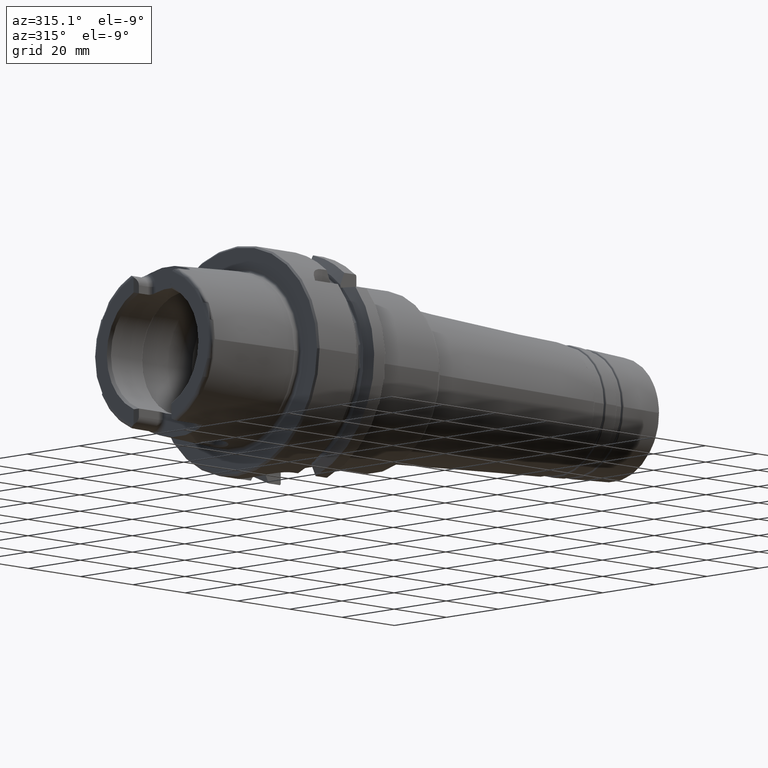
[diagram: clean part render]
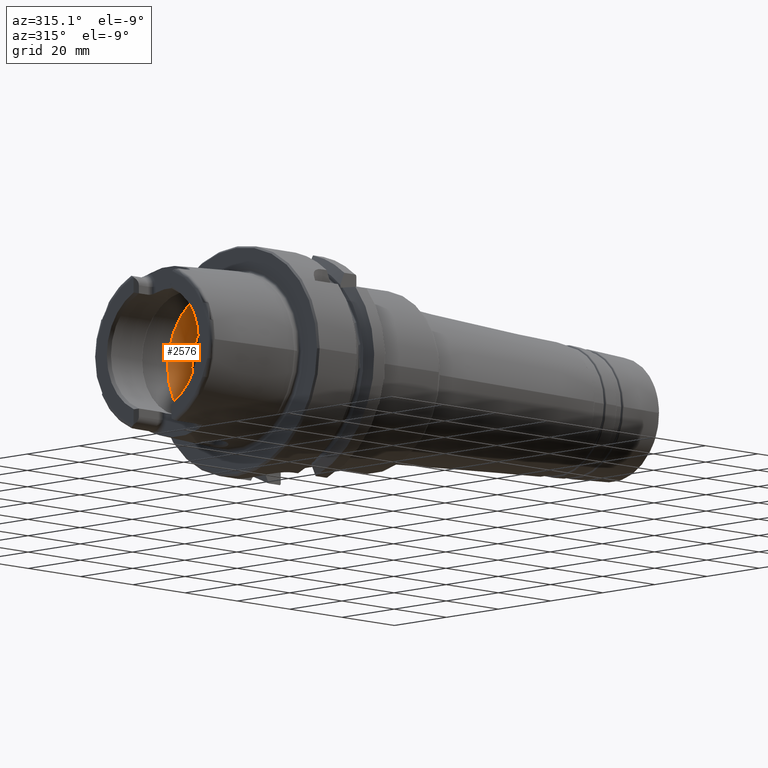
[diagram: same view with one face highlighted and labeled with its STEP entity id]
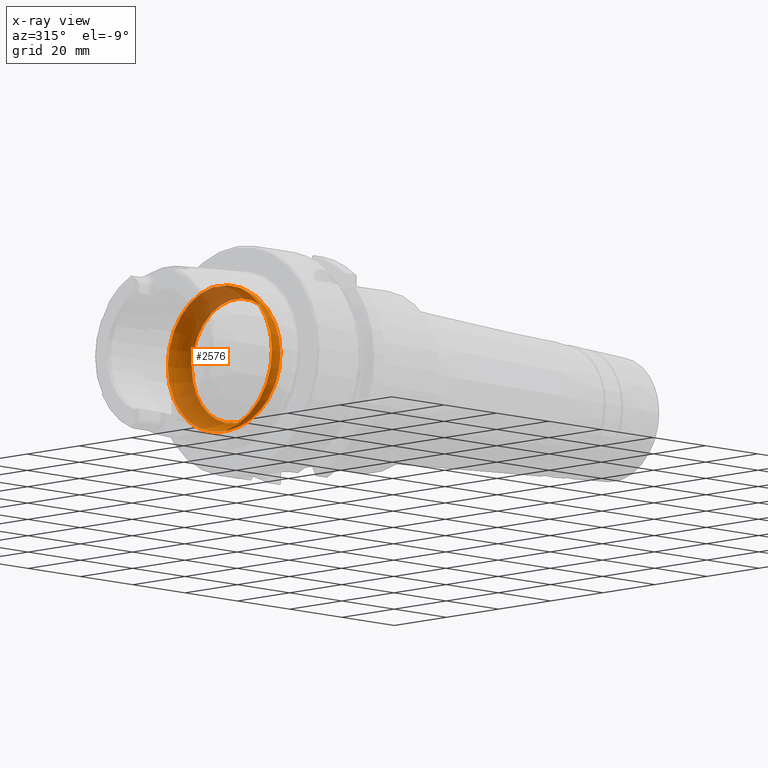
[diagram: x-ray of the same camera — body ghosted, the highlighted face saturated]
A machine part, auxiliary view. The second image highlights one B-rep face of the part: STEP entity #2576.
The next image is the same camera in x-ray: the body ghosted, the highlighted face saturated — about 39% of this face is hidden behind the body in this view.
In plain terms, the highlighted toroidal blend (fillet) surface has major radius 12 mm and minor (blend) radius 8 mm.
Its self-contained STEP definition (entity closure, byte-faithful):
#48=B_SPLINE_CURVE_WITH_KNOTS('',3,(#4588,#4589,#4590,#4591,#4592,#4593,
#4594,#4595,#4596,#4597,#4598,#4599),.UNSPECIFIED.,.F.,.F.,(4,2,2,2,2,4),
(-0.576707489927124,-0.455716402860971,-0.365368737325141,-0.320549741072208,
-0.288976283252817,-0.288398128098771),.UNSPECIFIED.);
#50=B_SPLINE_CURVE_WITH_KNOTS('',3,(#4632,#4633,#4634,#4635,#4636,#4637,
#4638,#4639,#4640,#4641),.UNSPECIFIED.,.F.,.F.,(4,2,2,2,4),(-0.288398128098771,
-0.257600392372179,-0.213718373510583,-0.137948403428913,0.),
 .UNSPECIFIED.);
#53=B_SPLINE_CURVE_WITH_KNOTS('',3,(#4754,#4755,#4756,#4757,#4758,#4759,
#4760,#4761,#4762,#4763,#4764,#4765),.UNSPECIFIED.,.F.,.F.,(4,2,2,2,2,4),
(-0.576707489927132,-0.455716402860962,-0.365368737325128,-0.320549741072191,
-0.288976283252795,-0.288398128098748),.UNSPECIFIED.);
#55=B_SPLINE_CURVE_WITH_KNOTS('',3,(#4798,#4799,#4800,#4801,#4802,#4803,
#4804,#4805,#4806,#4807),.UNSPECIFIED.,.F.,.F.,(4,2,2,2,4),(-0.288398128098748,
-0.257600392372146,-0.213718373510557,-0.137948403428907,0.),
 .UNSPECIFIED.);
#162=TOROIDAL_SURFACE('',#2862,12.,8.);
#267=FACE_OUTER_BOUND('',#408,.T.);
#408=EDGE_LOOP('',(#2020,#2021,#2022,#2023,#2024,#2025,#2026,#2027,#2028,
#2029,#2030,#2031));
#851=CIRCLE('',#2856,20.);
#855=CIRCLE('',#2860,20.);
#856=CIRCLE('',#2861,20.);
#857=CIRCLE('',#2863,17.);
#858=CIRCLE('',#2864,17.);
#859=CIRCLE('',#2865,17.);
#860=CIRCLE('',#2866,8.);
#1102=VERTEX_POINT('',#4585);
#1103=VERTEX_POINT('',#4587);
#1104=VERTEX_POINT('',#4600);
#1108=VERTEX_POINT('',#4752);
#1109=VERTEX_POINT('',#4753);
#1110=VERTEX_POINT('',#4766);
#1112=VERTEX_POINT('',#4812);
#1116=VERTEX_POINT('',#4824);
#1117=VERTEX_POINT('',#4825);
#1118=VERTEX_POINT('',#4827);
#1436=EDGE_CURVE('',#1103,#1102,#48,.T.);
#1438=EDGE_CURVE('',#1102,#1104,#50,.T.);
#1443=EDGE_CURVE('',#1108,#1109,#53,.T.);
#1445=EDGE_CURVE('',#1109,#1110,#55,.T.);
#1448=EDGE_CURVE('',#1112,#1108,#851,.T.);
#1453=EDGE_CURVE('',#1104,#1112,#855,.T.);
#1454=EDGE_CURVE('',#1110,#1103,#856,.T.);
#1455=EDGE_CURVE('',#1116,#1117,#857,.T.);
#1456=EDGE_CURVE('',#1118,#1116,#858,.T.);
#1457=EDGE_CURVE('',#1117,#1118,#859,.T.);
#1458=EDGE_CURVE('',#1117,#1102,#860,.T.);
#2020=ORIENTED_EDGE('',*,*,#1455,.F.);
#2021=ORIENTED_EDGE('',*,*,#1456,.F.);
#2022=ORIENTED_EDGE('',*,*,#1457,.F.);
#2023=ORIENTED_EDGE('',*,*,#1458,.T.);
#2024=ORIENTED_EDGE('',*,*,#1438,.T.);
#2025=ORIENTED_EDGE('',*,*,#1453,.T.);
#2026=ORIENTED_EDGE('',*,*,#1448,.T.);
#2027=ORIENTED_EDGE('',*,*,#1443,.T.);
#2028=ORIENTED_EDGE('',*,*,#1445,.T.);
#2029=ORIENTED_EDGE('',*,*,#1454,.T.);
#2030=ORIENTED_EDGE('',*,*,#1436,.T.);
#2031=ORIENTED_EDGE('',*,*,#1458,.F.);
#2576=ADVANCED_FACE('',(#267),#162,.F.);
#2856=AXIS2_PLACEMENT_3D('',#4813,#3445,#3446);
#2860=AXIS2_PLACEMENT_3D('',#4821,#3454,#3455);
#2861=AXIS2_PLACEMENT_3D('',#4822,#3456,#3457);
#2862=AXIS2_PLACEMENT_3D('',#4823,#3458,#3459);
#2863=AXIS2_PLACEMENT_3D('',#4826,#3460,#3461);
#2864=AXIS2_PLACEMENT_3D('',#4828,#3462,#3463);
#2865=AXIS2_PLACEMENT_3D('',#4829,#3464,#3465);
#2866=AXIS2_PLACEMENT_3D('',#4830,#3466,#3467);
#3445=DIRECTION('center_axis',(-1.,0.,0.));
#3446=DIRECTION('ref_axis',(0.,0.,1.));
#3454=DIRECTION('center_axis',(-1.,0.,0.));
#3455=DIRECTION('ref_axis',(0.,0.,1.));
#3456=DIRECTION('center_axis',(-1.,0.,0.));
#3457=DIRECTION('ref_axis',(0.,0.,1.));
#3458=DIRECTION('center_axis',(-1.,0.,0.));
#3459=DIRECTION('ref_axis',(0.,0.,1.));
#3460=DIRECTION('center_axis',(-1.,0.,0.));
#3461=DIRECTION('ref_axis',(0.,0.,1.));
#3462=DIRECTION('center_axis',(-1.,0.,0.));
#3463=DIRECTION('ref_axis',(0.,0.,1.));
#3464=DIRECTION('center_axis',(-1.,0.,0.));
#3465=DIRECTION('ref_axis',(0.,0.,1.));
#3466=DIRECTION('center_axis',(0.,1.,-1.22464679914735E-16));
#3467=DIRECTION('ref_axis',(0.,-1.22464679914735E-16,-1.));
#4585=CARTESIAN_POINT('',(-5.25000000000001,-2.38754063673609E-16,-19.9307944116589));
#4587=CARTESIAN_POINT('',(-6.3,2.60240273593462,-19.8299646999182));
#4588=CARTESIAN_POINT('Ctrl Pts',(-6.30000000000001,2.60240273593462,-19.8299646999182));
#4589=CARTESIAN_POINT('Ctrl Pts',(-6.02135700807982,2.3133098650288,-19.8679040553113));
#4590=CARTESIAN_POINT('Ctrl Pts',(-5.79033009489733,1.98064918550535,-19.890591169119));
#4591=CARTESIAN_POINT('Ctrl Pts',(-5.48675593472391,1.34543685595405,-19.9160762142355));
#4592=CARTESIAN_POINT('Ctrl Pts',(-5.39007954405642,1.05909527261751,-19.9223713998338));
#4593=CARTESIAN_POINT('Ctrl Pts',(-5.29825184053116,0.617966692523924,-19.9280498303184));
#4594=CARTESIAN_POINT('Ctrl Pts',(-5.27657003878054,0.469994704559157,-19.9292919985393));
#4595=CARTESIAN_POINT('Ctrl Pts',(-5.25476109400056,0.216252544174993,-19.9305312191434));
#4596=CARTESIAN_POINT('Ctrl Pts',(-5.25016676806113,0.111043433894866,-19.9307851133249));
#4597=CARTESIAN_POINT('Ctrl Pts',(-5.25000148602981,0.00385492015310945,
-19.9307943288045));
#4598=CARTESIAN_POINT('Ctrl Pts',(-5.25000000000001,0.00192745284672889,
-19.9307944116589));
#4599=CARTESIAN_POINT('Ctrl Pts',(-5.25000000000001,-9.32466898785687E-16,
-19.9307944116589));
#4600=CARTESIAN_POINT('',(-6.3,-2.60240273593462,-19.8299646999182));
#4632=CARTESIAN_POINT('Ctrl Pts',(-5.25000000000001,-9.19403442267708E-16,
-19.9307944116589));
#4633=CARTESIAN_POINT('Ctrl Pts',(-5.25000000000001,-0.102673448439594,
-19.9307944116589));
#4634=CARTESIAN_POINT('Ctrl Pts',(-5.25421684930313,-0.205305866402778,
-19.9305613545514));
#4635=CARTESIAN_POINT('Ctrl Pts',(-5.27464110625334,-0.45343482711948,-19.9294026077432));
#4636=CARTESIAN_POINT('Ctrl Pts',(-5.29516467443997,-0.598409706843585,
-19.9282296486912));
#4637=CARTESIAN_POINT('Ctrl Pts',(-5.37406649070666,-0.989396372030681,
-19.9233785291009));
#4638=CARTESIAN_POINT('Ctrl Pts',(-5.44891810120347,-1.23128278857668,-19.9185486409462));
#4639=CARTESIAN_POINT('Ctrl Pts',(-5.72687568605107,-1.88691112132013,-19.8966847278005));
#4640=CARTESIAN_POINT('Ctrl Pts',(-5.98230637151863,-2.27279472213439,-19.8732210954731));
#4641=CARTESIAN_POINT('Ctrl Pts',(-6.30000000000001,-2.60240273593462,-19.8299646999182));
#4752=CARTESIAN_POINT('',(-6.3,-2.60240273593462,19.8299646999182));
#4753=CARTESIAN_POINT('',(-5.25,1.3311706820854E-15,19.9307944116589));
#4754=CARTESIAN_POINT('Ctrl Pts',(-6.3,-2.60240273593462,19.8299646999182));
#4755=CARTESIAN_POINT('Ctrl Pts',(-6.02135700807986,-2.31330986502885,19.8679040553113));
#4756=CARTESIAN_POINT('Ctrl Pts',(-5.79033009489738,-1.98064918550547,19.890591169119));
#4757=CARTESIAN_POINT('Ctrl Pts',(-5.48675593472391,-1.34543685595408,19.9160762142355));
#4758=CARTESIAN_POINT('Ctrl Pts',(-5.39007954405642,-1.05909527261751,19.9223713998338));
#4759=CARTESIAN_POINT('Ctrl Pts',(-5.29825184053116,-0.617966692523945,
19.9280498303184));
#4760=CARTESIAN_POINT('Ctrl Pts',(-5.27657003878054,-0.469994704559178,
19.9292919985393));
#4761=CARTESIAN_POINT('Ctrl Pts',(-5.25476109400056,-0.216252544174991,
19.9305312191434));
#4762=CARTESIAN_POINT('Ctrl Pts',(-5.25016676806113,-0.111043433894851,
19.9307851133249));
#4763=CARTESIAN_POINT('Ctrl Pts',(-5.2500014860298,-0.0038549201531106,
19.9307943288045));
#4764=CARTESIAN_POINT('Ctrl Pts',(-5.25,-0.00192745284672882,19.9307944116589));
#4765=CARTESIAN_POINT('Ctrl Pts',(-5.25,2.23839005029248E-15,19.9307944116589));
#4766=CARTESIAN_POINT('',(-6.3,2.60240273593462,19.8299646999182));
#4798=CARTESIAN_POINT('Ctrl Pts',(-5.25,2.23779328401008E-15,19.9307944116589));
#4799=CARTESIAN_POINT('Ctrl Pts',(-5.25,0.102673448439597,19.9307944116589));
#4800=CARTESIAN_POINT('Ctrl Pts',(-5.25421684930313,0.205305866402779,19.9305613545514));
#4801=CARTESIAN_POINT('Ctrl Pts',(-5.27464110625333,0.4534348271194,19.9294026077432));
#4802=CARTESIAN_POINT('Ctrl Pts',(-5.29516467443996,0.598409706843549,19.9282296486912));
#4803=CARTESIAN_POINT('Ctrl Pts',(-5.37406649070666,0.989396372030738,19.9233785291009));
#4804=CARTESIAN_POINT('Ctrl Pts',(-5.44891810120348,1.2312827885767,19.9185486409462));
#4805=CARTESIAN_POINT('Ctrl Pts',(-5.72687568605108,1.88691112132016,19.8966847278005));
#4806=CARTESIAN_POINT('Ctrl Pts',(-5.98230637151864,2.2727947221344,19.8732210954731));
#4807=CARTESIAN_POINT('Ctrl Pts',(-6.3,2.60240273593462,19.8299646999182));
#4812=CARTESIAN_POINT('',(-6.3,-20.,2.44929359829471E-15));
#4813=CARTESIAN_POINT('Origin',(-6.3,0.,0.));
#4821=CARTESIAN_POINT('Origin',(-6.3,0.,0.));
#4822=CARTESIAN_POINT('Origin',(-6.3,0.,0.));
#4823=CARTESIAN_POINT('Origin',(-6.3,0.,0.));
#4824=CARTESIAN_POINT('',(-0.055002001601602,17.,0.));
#4825=CARTESIAN_POINT('',(-0.0550020016016028,-2.0818995585505E-15,-17.));
#4826=CARTESIAN_POINT('Origin',(-0.0550020016016028,0.,0.));
#4827=CARTESIAN_POINT('',(-0.0550020016016028,-17.,2.0818995585505E-15));
#4828=CARTESIAN_POINT('Origin',(-0.0550020016016028,0.,0.));
#4829=CARTESIAN_POINT('Origin',(-0.0550020016016028,0.,0.));
#4830=CARTESIAN_POINT('Origin',(-6.3,-1.46957615897682E-15,-12.));